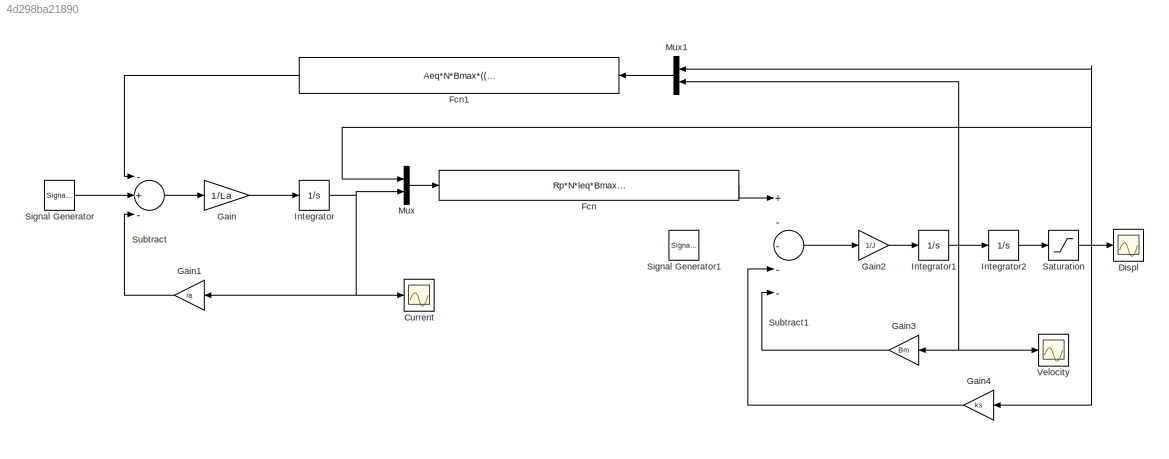
MODEL slx_4d298ba21890
KIND model
CONFIG AbsTol = auto
CONFIG FixedStep = auto
CONFIG MaxStep = auto
CONFIG MinStep = auto
CONFIG RelTol = 1e-3
CONFIG SampleTimeConstraint = Unconstrained
CONFIG Solver = ode45
CONFIG SolverMode = Auto
CONFIG SolverName = ode45
CONFIG StartTime = 0.0
CONFIG StopTime = 10.0
BLOCK [Scope] Current 
  Floating = off
  NumInputPorts = 1
  Ports = [1]
BLOCK [Scope] Displ
  Floating = off
  NumInputPorts = 1
  Ports = [1]
  SaveName = ScopeData1
BLOCK [Fcn] Fcn
  Expr = Rp*N*leq*Bmax*(tanh(a*(Tr0-u(1)))+tanh(a*(Tr0+u(1))))*u(2)
BLOCK [Fcn] Fcn1
  Expr = Aeq*N*Bmax*((tanh(a*(Tr0-u(1))))*u(2)-(tanh(a*(Tr0+u(1))))*u(2))
BLOCK [Gain] Gain
  Gain = 1/La
  OutDataTypeStr = Inherit: Inherit via internal rule
  ParamDataTypeStr = Inherit: Inherit via internal rule
  SaturateOnIntegerOverflow = off
BLOCK [Gain] Gain1
  Gain = ra
  OutDataTypeStr = Inherit: Inherit via internal rule
  ParamDataTypeStr = Inherit: Inherit via internal rule
  SaturateOnIntegerOverflow = off
BLOCK [Gain] Gain2
  Gain = 1/J
  OutDataTypeStr = Inherit: Inherit via internal rule
  ParamDataTypeStr = Inherit: Inherit via internal rule
  SaturateOnIntegerOverflow = off
BLOCK [Gain] Gain3
  Gain = Bm
  OutDataTypeStr = Inherit: Inherit via internal rule
  ParamDataTypeStr = Inherit: Inherit via internal rule
  SaturateOnIntegerOverflow = off
BLOCK [Gain] Gain4
  Gain = ks
  OutDataTypeStr = Inherit: Inherit via internal rule
  ParamDataTypeStr = Inherit: Inherit via internal rule
  SaturateOnIntegerOverflow = off
BLOCK [Integrator] Integrator
  Ports = [1, 1]
BLOCK [Integrator] Integrator1
  Ports = [1, 1]
BLOCK [Integrator] Integrator2
  Ports = [1, 1]
BLOCK [Mux] Mux
  DisplayOption = bar
  Inputs = 2
  Ports = [2, 1]
BLOCK [Mux] Mux1
  DisplayOption = bar
  Inputs = 2
  Ports = [2, 1]
BLOCK [Saturate] Saturation
  InputPortMap = u0
  Ports = [1, 1]
BLOCK [SignalGenerator] Signal Generator
  Amplitude = -5
  Frequency = 10
  Ports = [0, 1]
  Units = rad/sec
  WaveForm = square
BLOCK [SignalGenerator] Signal Generator1
  Amplitude = -5
  Frequency = 10
  Ports = [0, 1]
  Units = rad/sec
  WaveForm = square
BLOCK [Sum] Subtract
  InputSameDT = off
  Inputs = -+-
  OutDataTypeStr = Inherit: Inherit via internal rule
  Ports = [3, 1]
  SaturateOnIntegerOverflow = off
BLOCK [Sum] Subtract1
  InputSameDT = off
  Inputs = +----
  OutDataTypeStr = Inherit: Inherit via internal rule
  Ports = [5, 1]
  SaturateOnIntegerOverflow = off
BLOCK [Scope] Velocity
  Floating = off
  NumInputPorts = 1
  Ports = [1]
  SaveName = ScopeData2
LINE Fcn1:1 -> Subtract:1
LINE Fcn:1 -> Subtract1:1
LINE Gain1:1 -> Subtract:3
LINE Gain2:1 -> Integrator1:1
LINE Gain3:1 -> Subtract1:5
LINE Gain4:1 -> Subtract1:4
LINE Gain:1 -> Integrator:1
NET Integrator1:1 -> Gain3:1, Integrator2:1, Mux1:2, Velocity:1
LINE Integrator2:1 -> Saturation:1
NET Integrator:1 -> Current :1, Gain1:1, Mux:2
LINE Mux1:1 -> Fcn1:1
LINE Mux:1 -> Fcn:1
NET Saturation:1 -> Displ:1, Gain4:1, Mux1:1, Mux:1
LINE Signal Generator:1 -> Subtract:2
LINE Subtract1:1 -> Gain2:1
LINE Subtract:1 -> Gain:1
note: NET lines group one-source signal fan-out (src -> all destinations, sorted); 1:1 wires keep LINE
